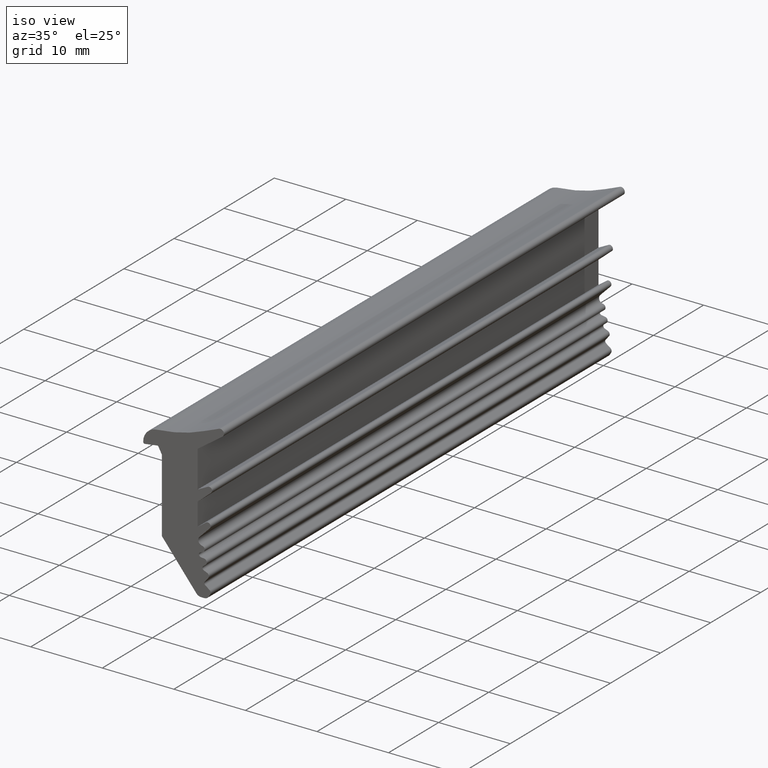
[diagram: clean part render]
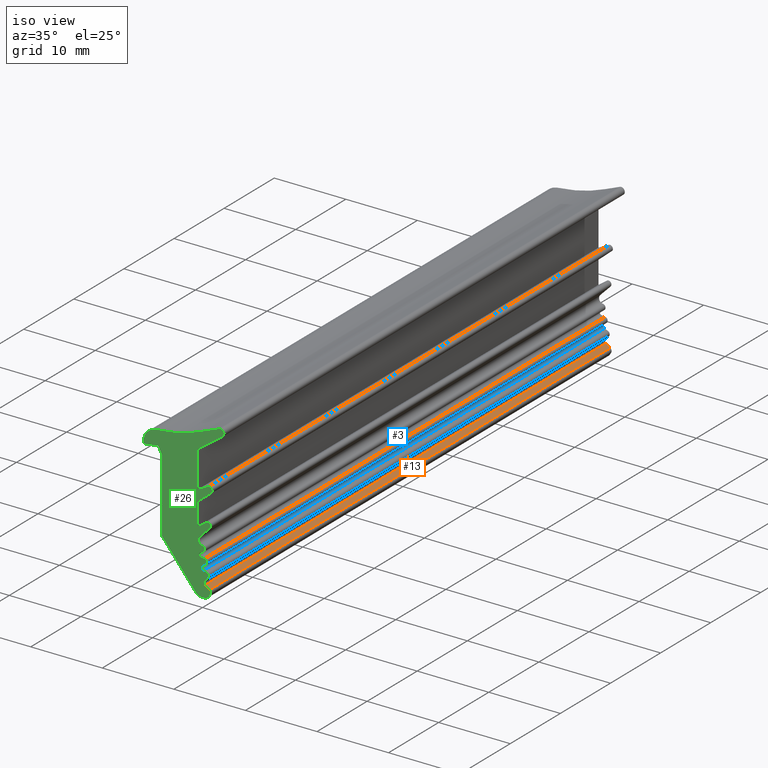
[diagram: same view with three faces highlighted in distinct colors, each labeled with its STEP entity id]
A machine part, iso view with three faces highlighted in distinct colors.
Their STEP definitions:

[orange] entity #13 — the highlighted planar face has unit normal (-0.5939, 0, -0.8045).
#13 = ADVANCED_FACE ( 'NONE', ( #288 ), #1137, .F. ) ;
#72 = AXIS2_PLACEMENT_3D ( 'NONE', #1169, #1124, #1123 ) ;
#231 = ORIENTED_EDGE ( 'NONE', *, *, #675, .F. ) ;
#288 = FACE_OUTER_BOUND ( 'NONE', #320, .T. ) ;
#320 = EDGE_LOOP ( 'NONE', ( #509, #425, #450, #231 ) ) ;
#425 = ORIENTED_EDGE ( 'NONE', *, *, #593, .F. ) ;
#450 = ORIENTED_EDGE ( 'NONE', *, *, #689, .F. ) ;
#509 = ORIENTED_EDGE ( 'NONE', *, *, #680, .F. ) ;
#593 = EDGE_CURVE ( 'NONE', #960, #1196, #1874, .T. ) ;
#675 = EDGE_CURVE ( 'NONE', #1262, #1270, #1717, .T. ) ;
#680 = EDGE_CURVE ( 'NONE', #1196, #1262, #1740, .T. ) ;
#689 = EDGE_CURVE ( 'NONE', #1270, #960, #1712, .T. ) ;
#960 = VERTEX_POINT ( 'NONE', #1567 ) ;
#1123 = DIRECTION ( 'NONE',  ( -0.8045355860986038700, 0.0000000000000000000, 0.5939044457662999700 ) ) ;
#1124 = DIRECTION ( 'NONE',  ( -0.5939044457662999700, 0.0000000000000000000, -0.8045355860986038700 ) ) ;
#1137 = PLANE ( 'NONE',  #72 ) ;
#1169 = CARTESIAN_POINT ( 'NONE',  ( 0.3757642862479910200, 80.00000000000000000, 1.667591668868029900 ) ) ;
#1196 = VERTEX_POINT ( 'NONE', #1535 ) ;
#1262 = VERTEX_POINT ( 'NONE', #1524 ) ;
#1270 = VERTEX_POINT ( 'NONE', #1518 ) ;
#1397 = CARTESIAN_POINT ( 'NONE',  ( 0.3757642862479910200, 0.0000000000000000000, 1.667591668868029900 ) ) ;
#1432 = DIRECTION ( 'NONE',  ( -0.8045355860986038700, 0.0000000000000000000, 0.5939044457662999700 ) ) ;
#1518 = CARTESIAN_POINT ( 'NONE',  ( 0.3757642862479912400, 0.0000000000000000000, 1.667591668868035700 ) ) ;
#1524 = CARTESIAN_POINT ( 'NONE',  ( 0.9609870865962862900, 0.0000000000000000000, 1.235582906426465400 ) ) ;
#1535 = CARTESIAN_POINT ( 'NONE',  ( 0.9609870865962862900, 80.00000000000000000, 1.235582906426465400 ) ) ;
#1567 = CARTESIAN_POINT ( 'NONE',  ( 0.3757642862479912400, 80.00000000000000000, 1.667591668868035700 ) ) ;
#1593 = DIRECTION ( 'NONE',  ( 0.0000000000000000000, 1.000000000000000000, 0.0000000000000000000 ) ) ;
#1600 = CARTESIAN_POINT ( 'NONE',  ( 0.3757642862479884100, 80.00000000000000000, 1.667591668868031900 ) ) ;
#1609 = DIRECTION ( 'NONE',  ( -0.0000000000000000000, -1.000000000000000000, -0.0000000000000000000 ) ) ;
#1610 = CARTESIAN_POINT ( 'NONE',  ( 0.9609870865962847300, 80.00000000000000000, 1.235582906426462700 ) ) ;
#1712 = LINE ( 'NONE', #1600, #1801 ) ;
#1717 = LINE ( 'NONE', #1397, #1783 ) ;
#1740 = LINE ( 'NONE', #1610, #1796 ) ;
#1783 = VECTOR ( 'NONE', #1432, 1000.000000000000100 ) ;
#1796 = VECTOR ( 'NONE', #1609, 1000.000000000000000 ) ;
#1801 = VECTOR ( 'NONE', #1593, 1000.000000000000000 ) ;
#1871 = VECTOR ( 'NONE', #1980, 1000.000000000000100 ) ;
#1874 = LINE ( 'NONE', #1969, #1871 ) ;
#1969 = CARTESIAN_POINT ( 'NONE',  ( 0.3757642862479910200, 80.00000000000000000, 1.667591668868029900 ) ) ;
#1980 = DIRECTION ( 'NONE',  ( 0.8045355860986038700, -0.0000000000000000000, -0.5939044457662999700 ) ) ;

[blue] entity #3 — the highlighted cylindrical surface (edge-blend (fillet) strip) has radius 0.3 mm, axis along (0, 1, 0).
#3 = ADVANCED_FACE ( 'NONE', ( #454 ), #435, .F. ) ;
#124 = AXIS2_PLACEMENT_3D ( 'NONE', #1630, #1666, #1654 ) ;
#134 = AXIS2_PLACEMENT_3D ( 'NONE', #1979, #1976, #1975 ) ;
#398 = EDGE_LOOP ( 'NONE', ( #484, #485, #486, #487 ) ) ;
#435 = CYLINDRICAL_SURFACE ( 'NONE', #737, 0.3000000000000003800 ) ;
#454 = FACE_OUTER_BOUND ( 'NONE', #398, .T. ) ;
#484 = ORIENTED_EDGE ( 'NONE', *, *, #690, .F. ) ;
#485 = ORIENTED_EDGE ( 'NONE', *, *, #595, .F. ) ;
#486 = ORIENTED_EDGE ( 'NONE', *, *, #665, .T. ) ;
#487 = ORIENTED_EDGE ( 'NONE', *, *, #644, .F. ) ;
#595 = EDGE_CURVE ( 'NONE', #1111, #1259, #1852, .T. ) ;
#644 = EDGE_CURVE ( 'NONE', #1258, #928, #1883, .T. ) ;
#665 = EDGE_CURVE ( 'NONE', #1111, #928, #1954, .T. ) ;
#690 = EDGE_CURVE ( 'NONE', #1259, #1258, #1714, .T. ) ;
#737 = AXIS2_PLACEMENT_3D ( 'NONE', #1244, #1313, #1226 ) ;
#928 = VERTEX_POINT ( 'NONE', #1568 ) ;
#1111 = VERTEX_POINT ( 'NONE', #1542 ) ;
#1226 = DIRECTION ( 'NONE',  ( 0.0000000000000000000, 0.0000000000000000000, 1.000000000000000000 ) ) ;
#1244 = CARTESIAN_POINT ( 'NONE',  ( 0.2971183663197490300, 80.00000000000000000, 3.759369837650630200 ) ) ;
#1258 = VERTEX_POINT ( 'NONE', #1528 ) ;
#1259 = VERTEX_POINT ( 'NONE', #1527 ) ;
#1313 = DIRECTION ( 'NONE',  ( 0.0000000000000000000, 1.000000000000000000, 0.0000000000000000000 ) ) ;
#1410 = CARTESIAN_POINT ( 'NONE',  ( 0.1110852931069328500, 80.00000000000000000, 3.994724242051792600 ) ) ;
#1411 = DIRECTION ( 'NONE',  ( -0.0000000000000000000, -1.000000000000000000, 0.0000000000000000000 ) ) ;
#1527 = CARTESIAN_POINT ( 'NONE',  ( 0.1844794169168170200, 80.00000000000000000, 3.481318642585012700 ) ) ;
#1528 = CARTESIAN_POINT ( 'NONE',  ( 0.1844794169168170200, 0.0000000000000000000, 3.481318642585012700 ) ) ;
#1542 = CARTESIAN_POINT ( 'NONE',  ( 0.1110852931069413000, 80.00000000000000000, 3.994724242051781900 ) ) ;
#1568 = CARTESIAN_POINT ( 'NONE',  ( 0.1110852931069413000, 0.0000000000000000000, 3.994724242051781900 ) ) ;
#1590 = DIRECTION ( 'NONE',  ( -0.0000000000000000000, -1.000000000000000000, -0.0000000000000000000 ) ) ;
#1595 = CARTESIAN_POINT ( 'NONE',  ( 0.1844794169168260700, 80.00000000000000000, 3.481318642585034900 ) ) ;
#1630 = CARTESIAN_POINT ( 'NONE',  ( 0.2971183663197490300, 0.0000000000000000000, 3.759369837650630200 ) ) ;
#1654 = DIRECTION ( 'NONE',  ( 0.0000000000000000000, 0.0000000000000000000, 1.000000000000000000 ) ) ;
#1666 = DIRECTION ( 'NONE',  ( 0.0000000000000000000, 1.000000000000000000, 0.0000000000000000000 ) ) ;
#1710 = VECTOR ( 'NONE', #1590, 1000.000000000000000 ) ;
#1714 = LINE ( 'NONE', #1595, #1710 ) ;
#1852 = CIRCLE ( 'NONE', #134, 0.3000000000000003800 ) ;
#1883 = CIRCLE ( 'NONE', #124, 0.3000000000000003800 ) ;
#1910 = VECTOR ( 'NONE', #1411, 1000.000000000000000 ) ;
#1954 = LINE ( 'NONE', #1410, #1910 ) ;
#1975 = DIRECTION ( 'NONE',  ( 1.807003620809171800E-015, 0.0000000000000000000, 1.000000000000000000 ) ) ;
#1976 = DIRECTION ( 'NONE',  ( -0.0000000000000000000, -1.000000000000000000, -0.0000000000000000000 ) ) ;
#1979 = CARTESIAN_POINT ( 'NONE',  ( 0.2971183663197490300, 80.00000000000000000, 3.759369837650630200 ) ) ;

[green] entity #26 — the highlighted planar face has unit normal (0, -1, 0).
#26 = ADVANCED_FACE ( 'NONE', ( #2046 ), #978, .T. ) ;
#61 = AXIS2_PLACEMENT_3D ( 'NONE', #1577, #1573, #1572 ) ;
#62 = AXIS2_PLACEMENT_3D ( 'NONE', #1351, #1682, #1683 ) ;
#63 = AXIS2_PLACEMENT_3D ( 'NONE', #1448, #1439, #1465 ) ;
#64 = AXIS2_PLACEMENT_3D ( 'NONE', #1451, #1681, #1688 ) ;
#67 = AXIS2_PLACEMENT_3D ( 'NONE', #1662, #1635, #1640 ) ;
#71 = AXIS2_PLACEMENT_3D ( 'NONE', #1380, #1398, #1399 ) ;
#75 = AXIS2_PLACEMENT_3D ( 'NONE', #1443, #1446, #1454 ) ;
#76 = AXIS2_PLACEMENT_3D ( 'NONE', #1672, #1643, #1673 ) ;
#80 = AXIS2_PLACEMENT_3D ( 'NONE', #1608, #1599, #1598 ) ;
#96 = AXIS2_PLACEMENT_3D ( 'NONE', #1615, #1604, #1603 ) ;
#102 = AXIS2_PLACEMENT_3D ( 'NONE', #1661, #1664, #1632 ) ;
#108 = AXIS2_PLACEMENT_3D ( 'NONE', #1693, #1700, #1665 ) ;
#112 = AXIS2_PLACEMENT_3D ( 'NONE', #1419, #1403, #1404 ) ;
#113 = AXIS2_PLACEMENT_3D ( 'NONE', #1627, #1679, #1660 ) ;
#116 = AXIS2_PLACEMENT_3D ( 'NONE', #1357, #1358, #1425 ) ;
#124 = AXIS2_PLACEMENT_3D ( 'NONE', #1630, #1666, #1654 ) ;
#126 = AXIS2_PLACEMENT_3D ( 'NONE', #1650, #1657, #1641 ) ;
#127 = AXIS2_PLACEMENT_3D ( 'NONE', #1663, #1637, #1634 ) ;
#131 = AXIS2_PLACEMENT_3D ( 'NONE', #1372, #1321, #1320 ) ;
#132 = AXIS2_PLACEMENT_3D ( 'NONE', #1325, #1339, #1338 ) ;
#153 = AXIS2_PLACEMENT_3D ( 'NONE', #1961, #865, #1815 ) ;
#178 = AXIS2_PLACEMENT_3D ( 'NONE', #986, #964, #963 ) ;
#203 = ORIENTED_EDGE ( 'NONE', *, *, #601, .F. ) ;
#250 = ORIENTED_EDGE ( 'NONE', *, *, #668, .T. ) ;
#252 = ORIENTED_EDGE ( 'NONE', *, *, #655, .F. ) ;
#253 = ORIENTED_EDGE ( 'NONE', *, *, #591, .F. ) ;
#255 = ORIENTED_EDGE ( 'NONE', *, *, #698, .T. ) ;
#256 = ORIENTED_EDGE ( 'NONE', *, *, #646, .T. ) ;
#257 = ORIENTED_EDGE ( 'NONE', *, *, #641, .T. ) ;
#258 = ORIENTED_EDGE ( 'NONE', *, *, #637, .T. ) ;
#259 = ORIENTED_EDGE ( 'NONE', *, *, #626, .T. ) ;
#260 = ORIENTED_EDGE ( 'NONE', *, *, #642, .T. ) ;
#261 = ORIENTED_EDGE ( 'NONE', *, *, #647, .T. ) ;
#262 = ORIENTED_EDGE ( 'NONE', *, *, #703, .F. ) ;
#263 = ORIENTED_EDGE ( 'NONE', *, *, #632, .T. ) ;
#264 = ORIENTED_EDGE ( 'NONE', *, *, #670, .T. ) ;
#265 = ORIENTED_EDGE ( 'NONE', *, *, #607, .T. ) ;
#267 = ORIENTED_EDGE ( 'NONE', *, *, #707, .T. ) ;
#268 = ORIENTED_EDGE ( 'NONE', *, *, #638, .T. ) ;
#269 = ORIENTED_EDGE ( 'NONE', *, *, #661, .T. ) ;
#270 = ORIENTED_EDGE ( 'NONE', *, *, #649, .F. ) ;
#271 = ORIENTED_EDGE ( 'NONE', *, *, #660, .F. ) ;
#272 = ORIENTED_EDGE ( 'NONE', *, *, #599, .T. ) ;
#273 = ORIENTED_EDGE ( 'NONE', *, *, #671, .T. ) ;
#274 = ORIENTED_EDGE ( 'NONE', *, *, #675, .T. ) ;
#275 = ORIENTED_EDGE ( 'NONE', *, *, #644, .T. ) ;
#279 = EDGE_LOOP ( 'NONE', ( #427, #576, #552, #394, #385, #557, #538, #411, #255, #580, #261, #268, #559, #304, #260, #263, #253, #403, #264, #270, #269, #271, #272, #203, #274, #536, #273, #301, #341, #275, #265, #252, #256, #258, #257, #449, #281, #267, #578, #424, #262, #259, #250 ) ) ;
#281 = ORIENTED_EDGE ( 'NONE', *, *, #636, .T. ) ;
#301 = ORIENTED_EDGE ( 'NONE', *, *, #734, .F. ) ;
#304 = ORIENTED_EDGE ( 'NONE', *, *, #617, .T. ) ;
#341 = ORIENTED_EDGE ( 'NONE', *, *, #696, .T. ) ;
#385 = ORIENTED_EDGE ( 'NONE', *, *, #700, .T. ) ;
#394 = ORIENTED_EDGE ( 'NONE', *, *, #628, .T. ) ;
#403 = ORIENTED_EDGE ( 'NONE', *, *, #662, .T. ) ;
#411 = ORIENTED_EDGE ( 'NONE', *, *, #735, .F. ) ;
#424 = ORIENTED_EDGE ( 'NONE', *, *, #697, .F. ) ;
#427 = ORIENTED_EDGE ( 'NONE', *, *, #611, .T. ) ;
#449 = ORIENTED_EDGE ( 'NONE', *, *, #604, .F. ) ;
#536 = ORIENTED_EDGE ( 'NONE', *, *, #683, .T. ) ;
#538 = ORIENTED_EDGE ( 'NONE', *, *, #631, .F. ) ;
#552 = ORIENTED_EDGE ( 'NONE', *, *, #755, .F. ) ;
#557 = ORIENTED_EDGE ( 'NONE', *, *, #630, .T. ) ;
#559 = ORIENTED_EDGE ( 'NONE', *, *, #687, .F. ) ;
#576 = ORIENTED_EDGE ( 'NONE', *, *, #643, .F. ) ;
#578 = ORIENTED_EDGE ( 'NONE', *, *, #667, .T. ) ;
#580 = ORIENTED_EDGE ( 'NONE', *, *, #615, .T. ) ;
#591 = EDGE_CURVE ( 'NONE', #1002, #1022, #1880, .T. ) ;
#599 = EDGE_CURVE ( 'NONE', #1260, #1297, #1958, .T. ) ;
#601 = EDGE_CURVE ( 'NONE', #1262, #1297, #1887, .T. ) ;
#604 = EDGE_CURVE ( 'NONE', #972, #1014, #1832, .T. ) ;
#607 = EDGE_CURVE ( 'NONE', #928, #1182, #1827, .T. ) ;
#611 = EDGE_CURVE ( 'NONE', #997, #1045, #1817, .T. ) ;
#615 = EDGE_CURVE ( 'NONE', #1019, #1101, #1868, .T. ) ;
#617 = EDGE_CURVE ( 'NONE', #1281, #995, #1947, .T. ) ;
#626 = EDGE_CURVE ( 'NONE', #999, #1268, #1943, .T. ) ;
#628 = EDGE_CURVE ( 'NONE', #1018, #1279, #1863, .T. ) ;
#630 = EDGE_CURVE ( 'NONE', #864, #1156, #1826, .T. ) ;
#631 = EDGE_CURVE ( 'NONE', #1263, #1156, #1921, .T. ) ;
#632 = EDGE_CURVE ( 'NONE', #1272, #1022, #1825, .T. ) ;
#636 = EDGE_CURVE ( 'NONE', #972, #1011, #1956, .T. ) ;
#637 = EDGE_CURVE ( 'NONE', #1021, #1256, #1945, .T. ) ;
#638 = EDGE_CURVE ( 'NONE', #1280, #1277, #1931, .T. ) ;
#641 = EDGE_CURVE ( 'NONE', #1256, #1014, #1942, .T. ) ;
#642 = EDGE_CURVE ( 'NONE', #995, #1272, #1873, .T. ) ;
#643 = EDGE_CURVE ( 'NONE', #941, #1045, #1879, .T. ) ;
#644 = EDGE_CURVE ( 'NONE', #1258, #928, #1883, .T. ) ;
#646 = EDGE_CURVE ( 'NONE', #1005, #1021, #1861, .T. ) ;
#647 = EDGE_CURVE ( 'NONE', #1101, #1280, #1881, .T. ) ;
#649 = EDGE_CURVE ( 'NONE', #1128, #1283, #1907, .T. ) ;
#655 = EDGE_CURVE ( 'NONE', #1005, #1182, #1893, .T. ) ;
#660 = EDGE_CURVE ( 'NONE', #1260, #1291, #1851, .T. ) ;
#661 = EDGE_CURVE ( 'NONE', #1128, #1291, #2181, .T. ) ;
#662 = EDGE_CURVE ( 'NONE', #1002, #1305, #1857, .T. ) ;
#667 = EDGE_CURVE ( 'NONE', #1274, #1188, #1856, .T. ) ;
#668 = EDGE_CURVE ( 'NONE', #1268, #997, #1846, .T. ) ;
#670 = EDGE_CURVE ( 'NONE', #1305, #1283, #1922, .T. ) ;
#671 = EDGE_CURVE ( 'NONE', #1294, #882, #1716, .T. ) ;
#675 = EDGE_CURVE ( 'NONE', #1262, #1270, #1717, .T. ) ;
#683 = EDGE_CURVE ( 'NONE', #1270, #1294, #1794, .T. ) ;
#687 = EDGE_CURVE ( 'NONE', #1281, #1277, #1713, .T. ) ;
#696 = EDGE_CURVE ( 'NONE', #847, #1258, #1799, .T. ) ;
#697 = EDGE_CURVE ( 'NONE', #1275, #1188, #1721, .T. ) ;
#698 = EDGE_CURVE ( 'NONE', #1306, #1019, #1790, .T. ) ;
#700 = EDGE_CURVE ( 'NONE', #1279, #864, #1720, .T. ) ;
#703 = EDGE_CURVE ( 'NONE', #999, #1275, #1728, .T. ) ;
#707 = EDGE_CURVE ( 'NONE', #1011, #1274, #1735, .T. ) ;
#734 = EDGE_CURVE ( 'NONE', #847, #882, #1741, .T. ) ;
#735 = EDGE_CURVE ( 'NONE', #1306, #1263, #1743, .T. ) ;
#755 = EDGE_CURVE ( 'NONE', #1018, #941, #1775, .T. ) ;
#847 = VERTEX_POINT ( 'NONE', #1575 ) ;
#864 = VERTEX_POINT ( 'NONE', #1574 ) ;
#865 = DIRECTION ( 'NONE',  ( 0.0000000000000000000, 1.000000000000000000, 0.0000000000000000000 ) ) ;
#882 = VERTEX_POINT ( 'NONE', #1571 ) ;
#928 = VERTEX_POINT ( 'NONE', #1568 ) ;
#941 = VERTEX_POINT ( 'NONE', #1580 ) ;
#963 = DIRECTION ( 'NONE',  ( 0.0000000000000000000, -0.0000000000000000000, -1.000000000000000000 ) ) ;
#964 = DIRECTION ( 'NONE',  ( 0.0000000000000000000, -1.000000000000000000, 0.0000000000000000000 ) ) ;
#972 = VERTEX_POINT ( 'NONE', #1566 ) ;
#978 = PLANE ( 'NONE',  #178 ) ;
#986 = CARTESIAN_POINT ( 'NONE',  ( -0.8233737312826510100, 0.0000000000000000000, 8.901853455270750000 ) ) ;
#995 = VERTEX_POINT ( 'NONE', #1563 ) ;
#997 = VERTEX_POINT ( 'NONE', #1562 ) ;
#999 = VERTEX_POINT ( 'NONE', #1561 ) ;
#1002 = VERTEX_POINT ( 'NONE', #1560 ) ;
#1005 = VERTEX_POINT ( 'NONE', #1559 ) ;
#1011 = VERTEX_POINT ( 'NONE', #1555 ) ;
#1014 = VERTEX_POINT ( 'NONE', #1554 ) ;
#1018 = VERTEX_POINT ( 'NONE', #1553 ) ;
#1019 = VERTEX_POINT ( 'NONE', #1552 ) ;
#1021 = VERTEX_POINT ( 'NONE', #1551 ) ;
#1022 = VERTEX_POINT ( 'NONE', #1550 ) ;
#1045 = VERTEX_POINT ( 'NONE', #1546 ) ;
#1101 = VERTEX_POINT ( 'NONE', #1543 ) ;
#1128 = VERTEX_POINT ( 'NONE', #1540 ) ;
#1156 = VERTEX_POINT ( 'NONE', #1539 ) ;
#1182 = VERTEX_POINT ( 'NONE', #1537 ) ;
#1188 = VERTEX_POINT ( 'NONE', #1536 ) ;
#1256 = VERTEX_POINT ( 'NONE', #1530 ) ;
#1258 = VERTEX_POINT ( 'NONE', #1528 ) ;
#1260 = VERTEX_POINT ( 'NONE', #1526 ) ;
#1262 = VERTEX_POINT ( 'NONE', #1524 ) ;
#1263 = VERTEX_POINT ( 'NONE', #1523 ) ;
#1268 = VERTEX_POINT ( 'NONE', #1520 ) ;
#1270 = VERTEX_POINT ( 'NONE', #1518 ) ;
#1272 = VERTEX_POINT ( 'NONE', #1516 ) ;
#1274 = VERTEX_POINT ( 'NONE', #1514 ) ;
#1275 = VERTEX_POINT ( 'NONE', #1513 ) ;
#1277 = VERTEX_POINT ( 'NONE', #1511 ) ;
#1279 = VERTEX_POINT ( 'NONE', #1510 ) ;
#1280 = VERTEX_POINT ( 'NONE', #1509 ) ;
#1281 = VERTEX_POINT ( 'NONE', #1508 ) ;
#1283 = VERTEX_POINT ( 'NONE', #1506 ) ;
#1291 = VERTEX_POINT ( 'NONE', #1498 ) ;
#1294 = VERTEX_POINT ( 'NONE', #1496 ) ;
#1297 = VERTEX_POINT ( 'NONE', #1494 ) ;
#1305 = VERTEX_POINT ( 'NONE', #1491 ) ;
#1306 = VERTEX_POINT ( 'NONE', #1490 ) ;
#1320 = DIRECTION ( 'NONE',  ( 0.0000000000000000000, 0.0000000000000000000, 1.000000000000000000 ) ) ;
#1321 = DIRECTION ( 'NONE',  ( 0.0000000000000000000, 1.000000000000000000, 0.0000000000000000000 ) ) ;
#1325 = CARTESIAN_POINT ( 'NONE',  ( -7.680258200792700100, 0.0000000000000000000, 39.62568087797780000 ) ) ;
#1329 = DIRECTION ( 'NONE',  ( 0.7845146813378731700, 0.0000000000000000000, 0.6201102440416020900 ) ) ;
#1330 = CARTESIAN_POINT ( 'NONE',  ( 0.4530473146750930200, 0.0000000000000000000, 4.265024030815419900 ) ) ;
#1338 = DIRECTION ( 'NONE',  ( 0.0000000000000000000, 0.0000000000000000000, 1.000000000000000000 ) ) ;
#1339 = DIRECTION ( 'NONE',  ( 0.0000000000000000000, 1.000000000000000000, 0.0000000000000000000 ) ) ;
#1340 = DIRECTION ( 'NONE',  ( 0.7594936582989938500, 0.0000000000000000000, 0.6505147062162477400 ) ) ;
#1342 = CARTESIAN_POINT ( 'NONE',  ( -0.6795639554795279700, 0.0000000000000000000, 11.93140918871830000 ) ) ;
#1349 = CARTESIAN_POINT ( 'NONE',  ( -0.6795639554795279700, 0.0000000000000000000, 8.901853455270750000 ) ) ;
#1351 = CARTESIAN_POINT ( 'NONE',  ( 2.498853636203439700, 0.0000000000000000000, 21.47385253618760000 ) ) ;
#1357 = CARTESIAN_POINT ( 'NONE',  ( 0.7316262196861170700, 0.0000000000000000000, 9.285529402726400100 ) ) ;
#1358 = DIRECTION ( 'NONE',  ( 0.0000000000000000000, 1.000000000000000000, 0.0000000000000000000 ) ) ;
#1359 = DIRECTION ( 'NONE',  ( -0.9268373168836427900, 0.0000000000000000000, 0.3754631646805449100 ) ) ;
#1360 = CARTESIAN_POINT ( 'NONE',  ( 0.1844794169168080000, 0.0000000000000000000, 3.481318642584990000 ) ) ;
#1361 = DIRECTION ( 'NONE',  ( 0.9890773297608199700, 0.0000000000000000000, 0.1473975432400622100 ) ) ;
#1372 = CARTESIAN_POINT ( 'NONE',  ( -0.09160810736725050200, 0.0000000000000000000, 6.131898389355039400 ) ) ;
#1375 = DIRECTION ( 'NONE',  ( 0.7030329992311781200, 0.0000000000000000000, 0.7111572273358505200 ) ) ;
#1376 = DIRECTION ( 'NONE',  ( -0.0000000000000000000, 0.0000000000000000000, 1.000000000000000000 ) ) ;
#1380 = CARTESIAN_POINT ( 'NONE',  ( 0.2291806908729859800, 0.0000000000000000000, 0.8000157501229859800 ) ) ;
#1388 = DIRECTION ( 'NONE',  ( 0.6382165461512370200, 0.0000000000000000000, 0.7698568959350730000 ) ) ;
#1389 = CARTESIAN_POINT ( 'NONE',  ( 0.7962926096018320100, 0.0000000000000000000, 2.671358463235999900 ) ) ;
#1390 = DIRECTION ( 'NONE',  ( 0.6298590774056884700, 0.0000000000000000000, -0.7767094325483983000 ) ) ;
#1397 = CARTESIAN_POINT ( 'NONE',  ( 0.3757642862479910200, 0.0000000000000000000, 1.667591668868029900 ) ) ;
#1398 = DIRECTION ( 'NONE',  ( 0.0000000000000000000, 1.000000000000000000, 0.0000000000000000000 ) ) ;
#1399 = DIRECTION ( 'NONE',  ( 0.0000000000000000000, 0.0000000000000000000, 1.000000000000000000 ) ) ;
#1400 = CARTESIAN_POINT ( 'NONE',  ( -0.07641188772049734000, 0.0000000000000000000, 0.0000000000000000000 ) ) ;
#1401 = CARTESIAN_POINT ( 'NONE',  ( 0.07641188772049734000, 0.0000000000000000000, 0.0000000000000000000 ) ) ;
#1402 = CARTESIAN_POINT ( 'NONE',  ( 0.2292356626202999800, 0.0000000000000000000, 7.876005815956635700E-006 ) ) ;
#1403 = DIRECTION ( 'NONE',  ( -0.0000000000000000000, -1.000000000000000000, -0.0000000000000000000 ) ) ;
#1404 = DIRECTION ( 'NONE',  ( -2.891205793294679000E-015, 0.0000000000000000000, 1.000000000000000000 ) ) ;
#1412 = CARTESIAN_POINT ( 'NONE',  ( -5.620414021402529800, 0.0000000000000000000, 6.179064395700550000 ) ) ;
#1415 = CARTESIAN_POINT ( 'NONE',  ( -0.6795639554795269700, 0.0000000000000000000, 8.901853455270750000 ) ) ;
#1419 = CARTESIAN_POINT ( 'NONE',  ( -5.379563955479549800, 0.0000000000000000000, 6.357925363339870000 ) ) ;
#1425 = DIRECTION ( 'NONE',  ( 0.0000000000000000000, 0.0000000000000000000, 1.000000000000000000 ) ) ;
#1432 = DIRECTION ( 'NONE',  ( -0.8045355860986038700, 0.0000000000000000000, 0.5939044457662999700 ) ) ;
#1433 = DIRECTION ( 'NONE',  ( -0.9262463133119052100, 0.0000000000000000000, -0.3769187804767812300 ) ) ;
#1439 = DIRECTION ( 'NONE',  ( 0.0000000000000000000, 1.000000000000000000, 0.0000000000000000000 ) ) ;
#1442 = CARTESIAN_POINT ( 'NONE',  ( 2.310394245966140000, 0.0000000000000000000, 21.93697569284399800 ) ) ;
#1443 = CARTESIAN_POINT ( 'NONE',  ( 0.7316262196861170700, 0.0000000000000000000, 9.285529402726400100 ) ) ;
#1446 = DIRECTION ( 'NONE',  ( 0.0000000000000000000, 1.000000000000000000, 0.0000000000000000000 ) ) ;
#1448 = CARTESIAN_POINT ( 'NONE',  ( 0.002494993352341160200, 0.0000000000000000000, 7.128220043805869800 ) ) ;
#1451 = CARTESIAN_POINT ( 'NONE',  ( 0.4883498512284510400, 0.0000000000000000000, 2.926645081697250000 ) ) ;
#1454 = DIRECTION ( 'NONE',  ( 0.0000000000000000000, 0.0000000000000000000, 1.000000000000000000 ) ) ;
#1461 = DIRECTION ( 'NONE',  ( -0.0000000000000000000, 0.0000000000000000000, 1.000000000000000000 ) ) ;
#1465 = DIRECTION ( 'NONE',  ( 0.0000000000000000000, 0.0000000000000000000, 1.000000000000000000 ) ) ;
#1466 = CARTESIAN_POINT ( 'NONE',  ( -8.058678942755211200, 0.0000000000000000000, 17.25350739726479800 ) ) ;
#1490 = CARTESIAN_POINT ( 'NONE',  ( 2.310394245966135100, -1.040834085586084300E-014, 21.93697569284400800 ) ) ;
#1491 = CARTESIAN_POINT ( 'NONE',  ( -5.620414021402822900, 0.0000000000000000000, 6.179064395700881300 ) ) ;
#1494 = CARTESIAN_POINT ( 'NONE',  ( 1.096052841777156900, 0.0000000000000000000, 0.6841092069220258100 ) ) ;
#1496 = CARTESIAN_POINT ( 'NONE',  ( 0.3229785511996716700, 0.0000000000000000000, 2.100417308542742200 ) ) ;
#1498 = CARTESIAN_POINT ( 'NONE',  ( 0.2292356626202999800, 0.0000000000000000000, 7.876005815956635700E-006 ) ) ;
#1506 = CARTESIAN_POINT ( 'NONE',  ( -0.8715574779113834900, -1.040834085586084300E-014, 0.3230216657280721200 ) ) ;
#1508 = CARTESIAN_POINT ( 'NONE',  ( -8.058678942755207700, 0.0000000000000000000, 17.25350739726476900 ) ) ;
#1509 = CARTESIAN_POINT ( 'NONE',  ( -6.581045914408424100, 0.0000000000000000000, 19.46429827437163200 ) ) ;
#1510 = CARTESIAN_POINT ( 'NONE',  ( -0.6795639554774786100, -9.251858538542970600E-015, 13.46174833956209600 ) ) ;
#1511 = CARTESIAN_POINT ( 'NONE',  ( -8.288121736369797400, 0.0000000000000000000, 17.44749080563719800 ) ) ;
#1513 = CARTESIAN_POINT ( 'NONE',  ( 0.7316262196861170700, 0.0000000000000000000, 9.685529402726398700 ) ) ;
#1514 = CARTESIAN_POINT ( 'NONE',  ( -0.4241993430486916100, -3.469446951953614200E-015, 7.550039843344924500 ) ) ;
#1516 = CARTESIAN_POINT ( 'NONE',  ( -6.162558616684093800, 0.0000000000000000000, 17.41693683586058200 ) ) ;
#1518 = CARTESIAN_POINT ( 'NONE',  ( 0.3757642862479912400, 0.0000000000000000000, 1.667591668868035700 ) ) ;
#1520 = CARTESIAN_POINT ( 'NONE',  ( -0.6795639554768067000, 0.0000000000000000000, 8.761659686548952700 ) ) ;
#1523 = CARTESIAN_POINT ( 'NONE',  ( 2.498853636203439700, 0.0000000000000000000, 21.97385253618760000 ) ) ;
#1524 = CARTESIAN_POINT ( 'NONE',  ( 0.9609870865962862900, 0.0000000000000000000, 1.235582906426465400 ) ) ;
#1526 = CARTESIAN_POINT ( 'NONE',  ( 0.9116576508178607700, 0.0000000000000000000, 0.3826128283023315100 ) ) ;
#1528 = CARTESIAN_POINT ( 'NONE',  ( 0.1844794169168170200, 0.0000000000000000000, 3.481318642585012700 ) ) ;
#1530 = CARTESIAN_POINT ( 'NONE',  ( -0.3068592864743358000, 0.0000000000000000000, 5.618413306910854400 ) ) ;
#1536 = CARTESIAN_POINT ( 'NONE',  ( 0.9876207321900559700, -3.469446951953614200E-015, 8.978174868730450300 ) ) ;
#1537 = CARTESIAN_POINT ( 'NONE',  ( 0.4530473146751050600, 0.0000000000000000000, 4.265024030815404800 ) ) ;
#1539 = CARTESIAN_POINT ( 'NONE',  ( 2.788702692518207000, 0.0000000000000000000, 21.06643687061568900 ) ) ;
#1540 = CARTESIAN_POINT ( 'NONE',  ( -0.2292356620790869400, 0.0000000000000000000, -1.575201159663793700E-005 ) ) ;
#1543 = CARTESIAN_POINT ( 'NONE',  ( -6.109770962250928900, 0.0000000000000000000, 19.53398525085564000 ) ) ;
#1546 = CARTESIAN_POINT ( 'NONE',  ( 1.166530621958502100, 3.469446951953614200E-015, 13.51260958264803900 ) ) ;
#1550 = CARTESIAN_POINT ( 'NONE',  ( -5.679563955478449200, 0.0000000000000000000, 16.54272989667387600 ) ) ;
#1551 = CARTESIAN_POINT ( 'NONE',  ( -0.2375197001679818500, 0.0000000000000000000, 5.041618697218161100 ) ) ;
#1552 = CARTESIAN_POINT ( 'NONE',  ( 0.2481865698910698500, 0.0000000000000000000, 21.09779846099450000 ) ) ;
#1553 = CARTESIAN_POINT ( 'NONE',  ( 0.7593382084239728200, 0.0000000000000000000, 14.19822896679083400 ) ) ;
#1554 = CARTESIAN_POINT ( 'NONE',  ( 0.05390343539544908300, 0.0000000000000000000, 5.759304252360330200 ) ) ;
#1555 = CARTESIAN_POINT ( 'NONE',  ( -0.07709314816098196400, 0.0000000000000000000, 6.533522029911036800 ) ) ;
#1559 = CARTESIAN_POINT ( 'NONE',  ( 0.2580619780753128900, 0.0000000000000000000, 4.975295245945146900 ) ) ;
#1560 = CARTESIAN_POINT ( 'NONE',  ( -5.679563955479529200, 0.0000000000000000000, 6.357925363344870500 ) ) ;
#1561 = CARTESIAN_POINT ( 'NONE',  ( 0.5118010619861915700, 0.0000000000000000000, 9.619710341803122200 ) ) ;
#1562 = CARTESIAN_POINT ( 'NONE',  ( -0.6795639554792970400, 0.0000000000000000000, 11.93140918871803200 ) ) ;
#1563 = CARTESIAN_POINT ( 'NONE',  ( -6.296977396144187700, 0.0000000000000000000, 17.51604549421568900 ) ) ;
#1566 = CARTESIAN_POINT ( 'NONE',  ( -0.03854934634947330300, 0.0000000000000000000, 6.528363731950420900 ) ) ;
#1568 = CARTESIAN_POINT ( 'NONE',  ( 0.1110852931069413000, 0.0000000000000000000, 3.994724242051781900 ) ) ;
#1571 = CARTESIAN_POINT ( 'NONE',  ( 0.7962926096018347900, 0.0000000000000000000, 2.671358463235996800 ) ) ;
#1572 = DIRECTION ( 'NONE',  ( 0.0000000000000000000, 0.0000000000000000000, 1.000000000000000000 ) ) ;
#1573 = DIRECTION ( 'NONE',  ( 0.0000000000000000000, 1.000000000000000000, 0.0000000000000000000 ) ) ;
#1574 = CARTESIAN_POINT ( 'NONE',  ( -0.6795639554790631200, 0.0000000000000000000, 18.59899661261965100 ) ) ;
#1575 = CARTESIAN_POINT ( 'NONE',  ( 0.6385351171013197200, 0.0000000000000000000, 3.297380008450436800 ) ) ;
#1577 = CARTESIAN_POINT ( 'NONE',  ( 0.9353391067472089900, 0.0000000000000000000, 13.83903029782140100 ) ) ;
#1580 = CARTESIAN_POINT ( 'NONE',  ( 0.9353391067472089900, 0.0000000000000000000, 14.23903029782139900 ) ) ;
#1589 = DIRECTION ( 'NONE',  ( -0.9911633564958432000, 0.0000000000000000000, 0.1326469024888780300 ) ) ;
#1592 = CARTESIAN_POINT ( 'NONE',  ( -0.4241993430482820000, 0.0000000000000000000, 7.550039843345340200 ) ) ;
#1598 = DIRECTION ( 'NONE',  ( 0.0000000000000000000, 0.0000000000000000000, 1.000000000000000000 ) ) ;
#1599 = DIRECTION ( 'NONE',  ( 0.0000000000000000000, 1.000000000000000000, 0.0000000000000000000 ) ) ;
#1603 = DIRECTION ( 'NONE',  ( 0.0000000000000000000, 0.0000000000000000000, 1.000000000000000000 ) ) ;
#1604 = DIRECTION ( 'NONE',  ( 0.0000000000000000000, 1.000000000000000000, 0.0000000000000000000 ) ) ;
#1608 = CARTESIAN_POINT ( 'NONE',  ( -8.088158451403069500, 0.0000000000000000000, 17.45132286321689800 ) ) ;
#1615 = CARTESIAN_POINT ( 'NONE',  ( 0.5539356199794619500, 0.0000000000000000000, 1.908952344696470000 ) ) ;
#1623 = CARTESIAN_POINT ( 'NONE',  ( -6.581045914407149600, 0.0000000000000000000, 19.46429827437179900 ) ) ;
#1624 = CARTESIAN_POINT ( 'NONE',  ( -0.7317439288646240300, 0.0000000000000000000, 8.724078374596238900 ) ) ;
#1626 = CARTESIAN_POINT ( 'NONE',  ( -0.07709314818097820500, 0.0000000000000000000, 6.533522029913710200 ) ) ;
#1627 = CARTESIAN_POINT ( 'NONE',  ( -0.2292906354499839900, 0.0000000000000000000, 0.7999842460995959500 ) ) ;
#1630 = CARTESIAN_POINT ( 'NONE',  ( 0.2971183663197490300, 0.0000000000000000000, 3.759369837650630200 ) ) ;
#1632 = DIRECTION ( 'NONE',  ( 0.0000000000000000000, 0.0000000000000000000, 1.000000000000000000 ) ) ;
#1633 = DIRECTION ( 'NONE',  ( -0.9892434464704292800, 0.0000000000000000000, -0.1462785138539040300 ) ) ;
#1634 = DIRECTION ( 'NONE',  ( 0.0000000000000000000, 0.0000000000000000000, 1.000000000000000000 ) ) ;
#1635 = DIRECTION ( 'NONE',  ( -0.0000000000000000000, -1.000000000000000000, -0.0000000000000000000 ) ) ;
#1637 = DIRECTION ( 'NONE',  ( 0.0000000000000000000, 1.000000000000000000, 0.0000000000000000000 ) ) ;
#1639 = CARTESIAN_POINT ( 'NONE',  ( 0.05390343539545330200, 0.0000000000000000000, 5.759304252360310600 ) ) ;
#1640 = DIRECTION ( 'NONE',  ( 0.0000000000000000000, 0.0000000000000000000, 1.000000000000000000 ) ) ;
#1641 = DIRECTION ( 'NONE',  ( 0.0000000000000000000, 0.0000000000000000000, 1.000000000000000000 ) ) ;
#1643 = DIRECTION ( 'NONE',  ( 0.0000000000000000000, 1.000000000000000000, 0.0000000000000000000 ) ) ;
#1649 = DIRECTION ( 'NONE',  ( 0.4835942993339847900, 0.0000000000000000000, -0.8752922675607687200 ) ) ;
#1650 = CARTESIAN_POINT ( 'NONE',  ( 2.498853636203439700, 0.0000000000000000000, 21.47385253618760000 ) ) ;
#1651 = DIRECTION ( 'NONE',  ( 0.8148313311438800700, 0.0000000000000000000, 0.5796981126295758200 ) ) ;
#1652 = CARTESIAN_POINT ( 'NONE',  ( -0.6795639554795279700, 0.0000000000000000000, 18.59899661262030100 ) ) ;
#1653 = DIRECTION ( 'NONE',  ( -0.8901733654085951500, 0.0000000000000000000, -0.4556219699675770900 ) ) ;
#1654 = DIRECTION ( 'NONE',  ( 0.0000000000000000000, 0.0000000000000000000, 1.000000000000000000 ) ) ;
#1656 = CARTESIAN_POINT ( 'NONE',  ( -0.8704118404255539700, -2.775557561562891400E-014, 13.36406569403240100 ) ) ;
#1657 = DIRECTION ( 'NONE',  ( 0.0000000000000000000, 1.000000000000000000, 0.0000000000000000000 ) ) ;
#1660 = DIRECTION ( 'NONE',  ( 0.0000000000000000000, 0.0000000000000000000, 1.000000000000000000 ) ) ;
#1661 = CARTESIAN_POINT ( 'NONE',  ( 0.9353391067472089900, 0.0000000000000000000, 13.83903029782140100 ) ) ;
#1662 = CARTESIAN_POINT ( 'NONE',  ( -6.288488886701889800, 0.0000000000000000000, 17.48581138143060100 ) ) ;
#1663 = CARTESIAN_POINT ( 'NONE',  ( -0.1977256294033520000, 0.0000000000000000000, 5.338967704164479900 ) ) ;
#1664 = DIRECTION ( 'NONE',  ( 0.0000000000000000000, 1.000000000000000000, 0.0000000000000000000 ) ) ;
#1665 = DIRECTION ( 'NONE',  ( 0.0000000000000000000, 0.0000000000000000000, 1.000000000000000000 ) ) ;
#1666 = DIRECTION ( 'NONE',  ( 0.0000000000000000000, 1.000000000000000000, 0.0000000000000000000 ) ) ;
#1672 = CARTESIAN_POINT ( 'NONE',  ( 0.2050032170575550000, 0.0000000000000000000, 4.578829903349809900 ) ) ;
#1673 = DIRECTION ( 'NONE',  ( 0.0000000000000000000, 0.0000000000000000000, 1.000000000000000000 ) ) ;
#1674 = CARTESIAN_POINT ( 'NONE',  ( -0.2375197001679780200, 0.0000000000000000000, 5.041618697218189600 ) ) ;
#1678 = CARTESIAN_POINT ( 'NONE',  ( -4.683962561616009900, 0.0000000000000000000, 14.74071899038690100 ) ) ;
#1679 = DIRECTION ( 'NONE',  ( 0.0000000000000000000, 1.000000000000000000, 0.0000000000000000000 ) ) ;
#1681 = DIRECTION ( 'NONE',  ( 0.0000000000000000000, 1.000000000000000000, 0.0000000000000000000 ) ) ;
#1682 = DIRECTION ( 'NONE',  ( 0.0000000000000000000, 1.000000000000000000, 0.0000000000000000000 ) ) ;
#1683 = DIRECTION ( 'NONE',  ( 0.0000000000000000000, 0.0000000000000000000, 1.000000000000000000 ) ) ;
#1688 = DIRECTION ( 'NONE',  ( 0.0000000000000000000, 0.0000000000000000000, 1.000000000000000000 ) ) ;
#1693 = CARTESIAN_POINT ( 'NONE',  ( -6.337617070196199800, 0.0000000000000000000, 17.32021797599379900 ) ) ;
#1695 = DIRECTION ( 'NONE',  ( -0.8114478274281670100, 0.0000000000000000000, -0.5844248654550110400 ) ) ;
#1697 = CARTESIAN_POINT ( 'NONE',  ( -0.2292356620790869400, 0.0000000000000000000, -1.575201159663793700E-005 ) ) ;
#1698 = DIRECTION ( 'NONE',  ( -0.9911633564881562300, 0.0000000000000000000, 0.1326469025463180300 ) ) ;
#1700 = DIRECTION ( 'NONE',  ( 0.0000000000000000000, 1.000000000000000000, 0.0000000000000000000 ) ) ;
#1701 = DIRECTION ( 'NONE',  ( 0.9314853424877421700, 0.0000000000000000000, 0.3637788569041550700 ) ) ;
#1713 = CIRCLE ( 'NONE', #80, 0.1999999999999987900 ) ;
#1715 = VECTOR ( 'NONE', #1388, 1000.000000000000100 ) ;
#1716 = LINE ( 'NONE', #1389, #1715 ) ;
#1717 = LINE ( 'NONE', #1397, #1783 ) ;
#1720 = LINE ( 'NONE', #1349, #1724 ) ;
#1721 = CIRCLE ( 'NONE', #116, 0.3999999999999993000 ) ;
#1724 = VECTOR ( 'NONE', #1461, 1000.000000000000000 ) ;
#1728 = CIRCLE ( 'NONE', #75, 0.3999999999999993000 ) ;
#1735 = CIRCLE ( 'NONE', #63, 0.5999999999999998700 ) ;
#1741 = CIRCLE ( 'NONE', #64, 0.4000000000000001900 ) ;
#1743 = CIRCLE ( 'NONE', #62, 0.5000000000000004400 ) ;
#1755 = VECTOR ( 'NONE', #1433, 999.9999999999998900 ) ;
#1775 = CIRCLE ( 'NONE', #61, 0.3999999999999993000 ) ;
#1783 = VECTOR ( 'NONE', #1432, 1000.000000000000100 ) ;
#1790 = LINE ( 'NONE', #1442, #1755 ) ;
#1793 = VECTOR ( 'NONE', #1359, 1000.000000000000000 ) ;
#1794 = CIRCLE ( 'NONE', #96, 0.2999999999999999300 ) ;
#1797 = VECTOR ( 'NONE', #1390, 1000.000000000000100 ) ;
#1799 = LINE ( 'NONE', #1360, #1793 ) ;
#1815 = DIRECTION ( 'NONE',  ( 0.0000000000000000000, 0.0000000000000000000, 1.000000000000000000 ) ) ;
#1816 = VECTOR ( 'NONE', #1340, 1000.000000000000100 ) ;
#1817 = LINE ( 'NONE', #1342, #1816 ) ;
#1820 = VECTOR ( 'NONE', #1375, 999.9999999999998900 ) ;
#1821 = VECTOR ( 'NONE', #1701, 1000.000000000000000 ) ;
#1824 = VECTOR ( 'NONE', #1329, 1000.000000000000000 ) ;
#1825 = LINE ( 'NONE', #1678, #1928 ) ;
#1826 = LINE ( 'NONE', #1652, #1885 ) ;
#1827 = LINE ( 'NONE', #1330, #1824 ) ;
#1832 = CIRCLE ( 'NONE', #131, 0.4000000000000001900 ) ;
#1845 = VECTOR ( 'NONE', #1963, 1000.000000000000000 ) ;
#1846 = LINE ( 'NONE', #1415, #1923 ) ;
#1851 = CIRCLE ( 'NONE', #71, 0.8000000000000000400 ) ;
#1856 = LINE ( 'NONE', #1592, #1820 ) ;
#1857 = CIRCLE ( 'NONE', #112, 0.2999999999999999300 ) ;
#1861 = LINE ( 'NONE', #1674, #1933 ) ;
#1863 = LINE ( 'NONE', #1656, #1953 ) ;
#1868 = CIRCLE ( 'NONE', #132, 20.15298149999999900 ) ;
#1869 = VECTOR ( 'NONE', #1695, 1000.000000000000000 ) ;
#1873 = CIRCLE ( 'NONE', #108, 0.1999999999999987900 ) ;
#1879 = CIRCLE ( 'NONE', #102, 0.3999999999999993000 ) ;
#1880 = LINE ( 'NONE', #1960, #1906 ) ;
#1881 = LINE ( 'NONE', #1623, #1888 ) ;
#1883 = CIRCLE ( 'NONE', #124, 0.3000000000000003800 ) ;
#1885 = VECTOR ( 'NONE', #1651, 1000.000000000000000 ) ;
#1887 = CIRCLE ( 'NONE', #153, 0.3999999999999999700 ) ;
#1888 = VECTOR ( 'NONE', #1633, 1000.000000000000100 ) ;
#1891 = VECTOR ( 'NONE', #1589, 1000.000000000000100 ) ;
#1893 = CIRCLE ( 'NONE', #76, 0.4000000000000001900 ) ;
#1906 = VECTOR ( 'NONE', #1962, 1000.000000000000000 ) ;
#1907 = CIRCLE ( 'NONE', #113, 0.8000000000000000400 ) ;
#1921 = CIRCLE ( 'NONE', #126, 0.5000000000000004400 ) ;
#1922 = LINE ( 'NONE', #1412, #1797 ) ;
#1923 = VECTOR ( 'NONE', #1376, 1000.000000000000000 ) ;
#1925 = VECTOR ( 'NONE', #1361, 1000.000000000000100 ) ;
#1928 = VECTOR ( 'NONE', #1649, 1000.000000000000100 ) ;
#1931 = CIRCLE ( 'NONE', #67, 2.000000000000001800 ) ;
#1933 = VECTOR ( 'NONE', #1698, 999.9999999999998900 ) ;
#1942 = LINE ( 'NONE', #1639, #1821 ) ;
#1943 = LINE ( 'NONE', #1624, #1869 ) ;
#1945 = CIRCLE ( 'NONE', #127, 0.2999999999999999300 ) ;
#1947 = LINE ( 'NONE', #1466, #1925 ) ;
#1953 = VECTOR ( 'NONE', #1653, 1000.000000000000100 ) ;
#1956 = LINE ( 'NONE', #1626, #1891 ) ;
#1958 = LINE ( 'NONE', #1977, #1845 ) ;
#1960 = CARTESIAN_POINT ( 'NONE',  ( -5.679563955479530100, 0.0000000000000000000, 11.45032763000630100 ) ) ;
#1961 = CARTESIAN_POINT ( 'NONE',  ( 0.7548143618039339100, 0.0000000000000000000, 0.8928106678310689900 ) ) ;
#1962 = DIRECTION ( 'NONE',  ( -1.703246704734860000E-016, 0.0000000000000000000, 1.000000000000000000 ) ) ;
#1963 = DIRECTION ( 'NONE',  ( 0.5217536522762283900, 0.0000000000000000000, 0.8530961999308264200 ) ) ;
#1977 = CARTESIAN_POINT ( 'NONE',  ( 1.096052841777160000, 0.0000000000000000000, 0.6841092069220300300 ) ) ;
#2046 = FACE_OUTER_BOUND ( 'NONE', #279, .T. ) ;
#2181 = B_SPLINE_CURVE_WITH_KNOTS ( 'NONE', 3,
 ( #1697, #1400, #1401, #1402 ),
 .UNSPECIFIED., .F., .F.,
 ( 4, 4 ),
 ( 0.0000000000000000000, 1.000000000000000000 ),
 .UNSPECIFIED. ) ;